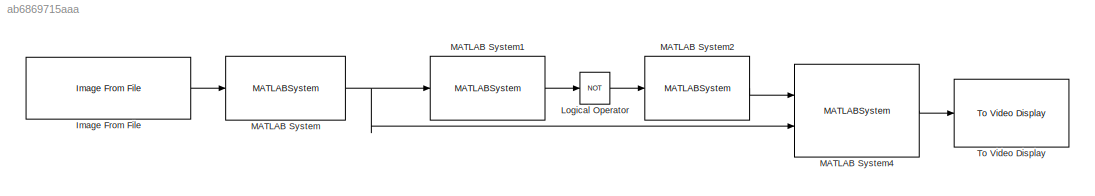
MODEL slx_ab6869715aaa
KIND model
CONFIG AbsTol = auto
CONFIG EnableMultiTasking = off
CONFIG FixedStep = auto
CONFIG MaxStep = auto
CONFIG MinStep = auto
CONFIG RelTol = 1e-3
CONFIG SampleTimeConstraint = Unconstrained
CONFIG SolverName = VariableStepAuto
CONFIG StartTime = 0.0
CONFIG StopTime = 10.0
BLOCK [Reference] Image From File  REF=visionsources/Image From File
  Ports = [0, 1]
  SourceBlock = visionsources/Image From File
  SourceProductBaseCode = VP
  SourceType = Image From File
  Tag = vipblks_nd
BLOCK [Logic] Logical Operator
  AllPortsSameDT = off
  Operator = NOT
  OutDataTypeStr = boolean
  Ports = [1, 1]
BLOCK [MATLABSystem] MATLAB System
  MaskDisplay = disp('RGB to Gray');\nport_label('input',1,'RGB');\nport_label('output',1,'Gray');
  MaskType = Rgb2GraySystem
  Ports = [1, 1]
  SimulateUsing = Code generation
  System = Rgb2GraySystem
BLOCK [MATLABSystem] MATLAB System1
  MaskDisplay = disp('Gray to BW');\nport_label('input',1,'Gray');\nport_label('output',1,'BW');
  MaskType = FrameBinarizeSystem
  Ports = [1, 1]
  SimulateUsing = Code generation
  System = FrameBinarizeSystem
BLOCK [MATLABSystem] MATLAB System2
  Deg = 4
  MaskDisplay = disp('BW to P');\nport_label('input',1,'BW');\nport_label('output',1,'P');
  MaskType = PolyfitSystem
  Ports = [1, 1]
  SimulateUsing = Code generation
  System = PolyfitSystem
BLOCK [MATLABSystem] MATLAB System4
  MaskDisplay = disp('P to y');\nport_label('input',1,'P');\nport_label('input',2,'Gray');\nport_label('output',1,'output');
  MaskType = PolyvalSystem
  Ports = [2, 1]
  SimulateUsing = Code generation
  System = PolyvalSystem
BLOCK [Reference] To Video Display  REF=visionsinks/To Video Display
  Ports = [1]
  SourceBlock = visionsinks/To Video Display
  SourceProductBaseCode = VP
  SourceType = To Video Display
LINE Image From File:1 -> MATLAB System:1
LINE Logical Operator:1 -> MATLAB System2:1
LINE MATLAB System1:1 -> Logical Operator:1
LINE MATLAB System2:1 -> MATLAB System4:1
LINE MATLAB System4:1 -> To Video Display:1
NET MATLAB System:1 -> MATLAB System1:1, MATLAB System4:2
note: NET lines group one-source signal fan-out (src -> all destinations, sorted); 1:1 wires keep LINE
